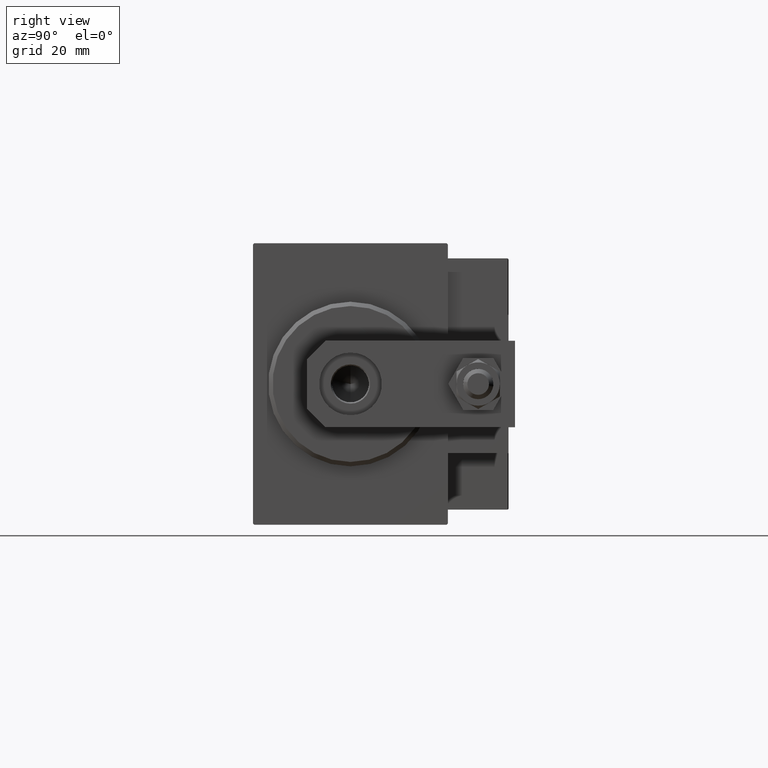
[diagram: clean part render]
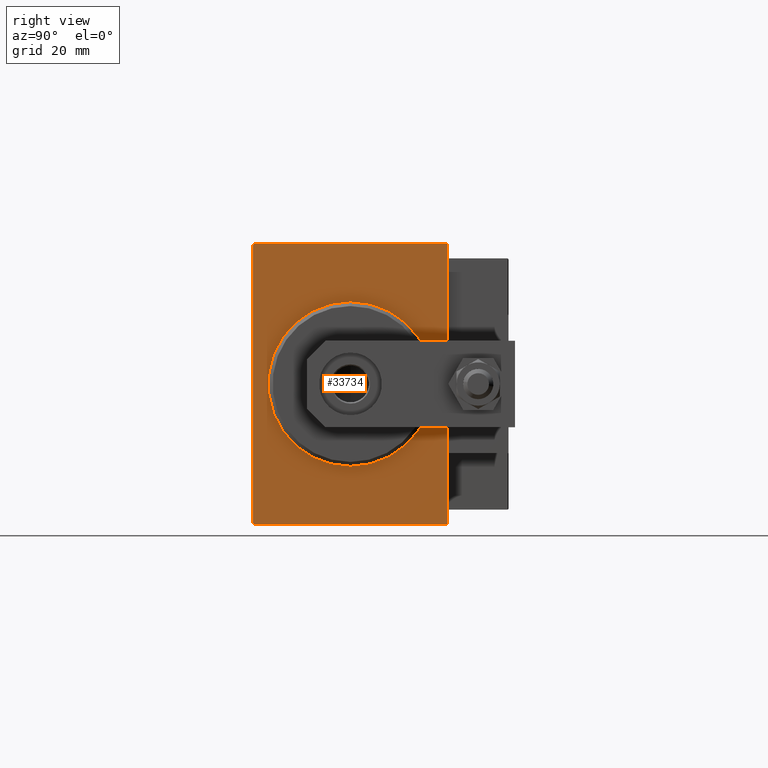
[diagram: same view with one face highlighted and labeled with its STEP entity id]
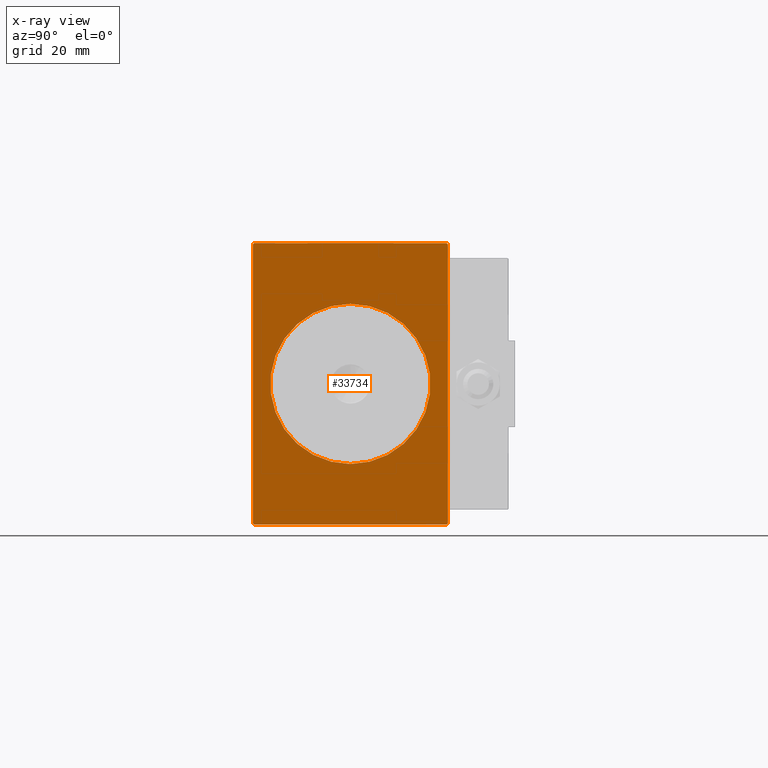
[diagram: x-ray of the same camera — body ghosted, the highlighted face saturated]
A machine part, right view. The second image highlights one B-rep face of the part: STEP entity #33734.
The next image is the same camera in x-ray: the body ghosted, the highlighted face saturated — about 0% of this face is hidden behind the body in this view.
In plain terms, the highlighted planar face has unit normal (-1, 0, 0).
Its self-contained STEP definition (entity closure, byte-faithful):
#196 = CIRCLE ( 'NONE', #6656, 18.50000000000000355 ) ;
#268 = DIRECTION ( 'NONE',  ( 0.000000000000000000, 0.000000000000000000, -1.000000000000000000 ) ) ;
#704 = AXIS2_PLACEMENT_3D ( 'NONE', #22485, #36847, #6843 ) ;
#1634 = EDGE_CURVE ( 'NONE', #9541, #37320, #17885, .T. ) ;
#2821 = VERTEX_POINT ( 'NONE', #47358 ) ;
#4353 = VECTOR ( 'NONE', #40724, 1000.000000000000114 ) ;
#5059 = EDGE_CURVE ( 'NONE', #2821, #44083, #25290, .T. ) ;
#5652 = VECTOR ( 'NONE', #19594, 1000.000000000000000 ) ;
#5675 = LINE ( 'NONE', #28637, #48460 ) ;
#6656 = AXIS2_PLACEMENT_3D ( 'NONE', #14766, #30128, #26347 ) ;
#6765 = EDGE_CURVE ( 'NONE', #25531, #42433, #49066, .T. ) ;
#6843 = DIRECTION ( 'NONE',  ( 0.000000000000000000, 0.000000000000000000, -1.000000000000000000 ) ) ;
#7469 = LINE ( 'NONE', #30678, #19486 ) ;
#7905 = DIRECTION ( 'NONE',  ( 0.000000000000000000, 0.000000000000000000, -1.000000000000000000 ) ) ;
#8224 = LINE ( 'NONE', #23630, #5652 ) ;
#8791 = EDGE_CURVE ( 'NONE', #9541, #29753, #40693, .T. ) ;
#9541 = VERTEX_POINT ( 'NONE', #16126 ) ;
#10521 = LINE ( 'NONE', #38470, #23592 ) ;
#11505 = VECTOR ( 'NONE', #18135, 1000.000000000000114 ) ;
#12527 = ORIENTED_EDGE ( 'NONE', *, *, #8791, .F. ) ;
#13397 = ORIENTED_EDGE ( 'NONE', *, *, #1634, .T. ) ;
#13522 = ORIENTED_EDGE ( 'NONE', *, *, #42974, .T. ) ;
#14596 = CARTESIAN_POINT ( 'NONE',  ( 0.000000000000000000, -22.19999999999998863, 32.50000000000000000 ) ) ;
#14766 = CARTESIAN_POINT ( 'NONE',  ( 0.000000000000000000, 0.000000000000000000, 0.000000000000000000 ) ) ;
#15631 = EDGE_LOOP ( 'NONE', ( #19411, #36126, #26277, #31647, #17485, #26320, #12527, #13397 ) ) ;
#16126 = CARTESIAN_POINT ( 'NONE',  ( 0.000000000000000000, -22.49999999999999645, 32.20000000000000284 ) ) ;
#16472 = CARTESIAN_POINT ( 'NONE',  ( 0.000000000000000000, -22.49999999999999645, -32.20000000000000284 ) ) ;
#17485 = ORIENTED_EDGE ( 'NONE', *, *, #20195, .F. ) ;
#17885 = LINE ( 'NONE', #26181, #11505 ) ;
#18135 = DIRECTION ( 'NONE',  ( -0.000000000000000000, 0.7071067811865474617, 0.7071067811865474617 ) ) ;
#19411 = ORIENTED_EDGE ( 'NONE', *, *, #43827, .F. ) ;
#19486 = VECTOR ( 'NONE', #22863, 1000.000000000000114 ) ;
#19594 = DIRECTION ( 'NONE',  ( -0.000000000000000000, 0.7071067811865393571, -0.7071067811865556774 ) ) ;
#20195 = EDGE_CURVE ( 'NONE', #44218, #42433, #45577, .T. ) ;
#20513 = VERTEX_POINT ( 'NONE', #38672 ) ;
#22485 = CARTESIAN_POINT ( 'NONE',  ( 0.000000000000000000, 0.000000000000000000, 0.000000000000000000 ) ) ;
#22863 = DIRECTION ( 'NONE',  ( -0.000000000000000000, -0.7071067811865474617, 0.7071067811865474617 ) ) ;
#23382 = CARTESIAN_POINT ( 'NONE',  ( 0.000000000000000000, -22.49999999999999645, -32.50000000000000000 ) ) ;
#23592 = VECTOR ( 'NONE', #34449, 1000.000000000000000 ) ;
#23630 = CARTESIAN_POINT ( 'NONE',  ( 0.000000000000000000, 22.19999999999999929, 32.50000000000000711 ) ) ;
#25290 = CIRCLE ( 'NONE', #42992, 18.50000000000000355 ) ;
#25531 = VERTEX_POINT ( 'NONE', #49905 ) ;
#25623 = CARTESIAN_POINT ( 'NONE',  ( 0.000000000000000000, 22.50000000000000355, -32.19999999999999574 ) ) ;
#26181 = CARTESIAN_POINT ( 'NONE',  ( 0.000000000000000000, -22.49999999999999645, 32.20000000000000284 ) ) ;
#26277 = ORIENTED_EDGE ( 'NONE', *, *, #44089, .F. ) ;
#26320 = ORIENTED_EDGE ( 'NONE', *, *, #41357, .T. ) ;
#26347 = DIRECTION ( 'NONE',  ( 0.000000000000000000, 0.000000000000000000, -1.000000000000000000 ) ) ;
#26773 = DIRECTION ( 'NONE',  ( 1.000000000000000000, 0.000000000000000000, 0.000000000000000000 ) ) ;
#27763 = VERTEX_POINT ( 'NONE', #43711 ) ;
#28637 = CARTESIAN_POINT ( 'NONE',  ( 0.000000000000000000, 22.50000000000000355, -32.50000000000000000 ) ) ;
#29753 = VERTEX_POINT ( 'NONE', #16472 ) ;
#30128 = DIRECTION ( 'NONE',  ( 1.000000000000000000, 0.000000000000000000, 0.000000000000000000 ) ) ;
#30678 = CARTESIAN_POINT ( 'NONE',  ( 0.000000000000000000, -22.19999999999999929, -32.50000000000000000 ) ) ;
#31647 = ORIENTED_EDGE ( 'NONE', *, *, #6765, .T. ) ;
#32629 = VECTOR ( 'NONE', #7905, 1000.000000000000000 ) ;
#32939 = VECTOR ( 'NONE', #34463, 1000.000000000000000 ) ;
#33329 = FACE_BOUND ( 'NONE', #42835, .T. ) ;
#33734 = ADVANCED_FACE ( 'NONE', ( #33329, #41131 ), #34064, .F. ) ;
#34064 = PLANE ( 'NONE',  #704 ) ;
#34449 = DIRECTION ( 'NONE',  ( 0.000000000000000000, -1.000000000000000000, -1.541976423090495633E-16 ) ) ;
#34463 = DIRECTION ( 'NONE',  ( 0.000000000000000000, 1.000000000000000000, 0.000000000000000000 ) ) ;
#35395 = CARTESIAN_POINT ( 'NONE',  ( 0.000000000000000000, 22.19999999999998153, -32.50000000000000000 ) ) ;
#36126 = ORIENTED_EDGE ( 'NONE', *, *, #36446, .T. ) ;
#36433 = DIRECTION ( 'NONE',  ( 0.000000000000000000, -1.067522139062650425E-16, 1.000000000000000000 ) ) ;
#36446 = EDGE_CURVE ( 'NONE', #27763, #20513, #8224, .T. ) ;
#36847 = DIRECTION ( 'NONE',  ( 1.000000000000000000, 0.000000000000000000, 0.000000000000000000 ) ) ;
#37320 = VERTEX_POINT ( 'NONE', #14596 ) ;
#38470 = CARTESIAN_POINT ( 'NONE',  ( 0.000000000000000000, 22.49999999999999645, 32.50000000000000711 ) ) ;
#38672 = CARTESIAN_POINT ( 'NONE',  ( 0.000000000000000000, 22.49999999999999645, 32.20000000000000284 ) ) ;
#39100 = CARTESIAN_POINT ( 'NONE',  ( 0.000000000000000000, 0.000000000000000000, 0.000000000000000000 ) ) ;
#40693 = LINE ( 'NONE', #49786, #32629 ) ;
#40724 = DIRECTION ( 'NONE',  ( 0.000000000000000000, -0.7071067811865474617, -0.7071067811865474617 ) ) ;
#41131 = FACE_OUTER_BOUND ( 'NONE', #15631, .T. ) ;
#41357 = EDGE_CURVE ( 'NONE', #44218, #29753, #7469, .T. ) ;
#42433 = VERTEX_POINT ( 'NONE', #35395 ) ;
#42636 = CARTESIAN_POINT ( 'NONE',  ( 0.000000000000000000, -22.19999999999999929, -32.50000000000000000 ) ) ;
#42835 = EDGE_LOOP ( 'NONE', ( #47769, #13522 ) ) ;
#42974 = EDGE_CURVE ( 'NONE', #44083, #2821, #196, .T. ) ;
#42992 = AXIS2_PLACEMENT_3D ( 'NONE', #39100, #26773, #268 ) ;
#43711 = CARTESIAN_POINT ( 'NONE',  ( 0.000000000000000000, 22.19999999999999929, 32.50000000000000711 ) ) ;
#43827 = EDGE_CURVE ( 'NONE', #27763, #37320, #10521, .T. ) ;
#44083 = VERTEX_POINT ( 'NONE', #47808 ) ;
#44089 = EDGE_CURVE ( 'NONE', #25531, #20513, #5675, .T. ) ;
#44218 = VERTEX_POINT ( 'NONE', #42636 ) ;
#45577 = LINE ( 'NONE', #23382, #32939 ) ;
#47358 = CARTESIAN_POINT ( 'NONE',  ( 0.000000000000000000, 0.000000000000000000, 18.50000000000000355 ) ) ;
#47769 = ORIENTED_EDGE ( 'NONE', *, *, #5059, .T. ) ;
#47808 = CARTESIAN_POINT ( 'NONE',  ( 0.000000000000000000, 2.265596578422603791E-15, -18.50000000000000355 ) ) ;
#48460 = VECTOR ( 'NONE', #36433, 1000.000000000000000 ) ;
#49066 = LINE ( 'NONE', #25623, #4353 ) ;
#49786 = CARTESIAN_POINT ( 'NONE',  ( 0.000000000000000000, -22.49999999999999645, 32.50000000000000000 ) ) ;
#49905 = CARTESIAN_POINT ( 'NONE',  ( 0.000000000000000000, 22.50000000000000355, -32.19999999999999574 ) ) ;